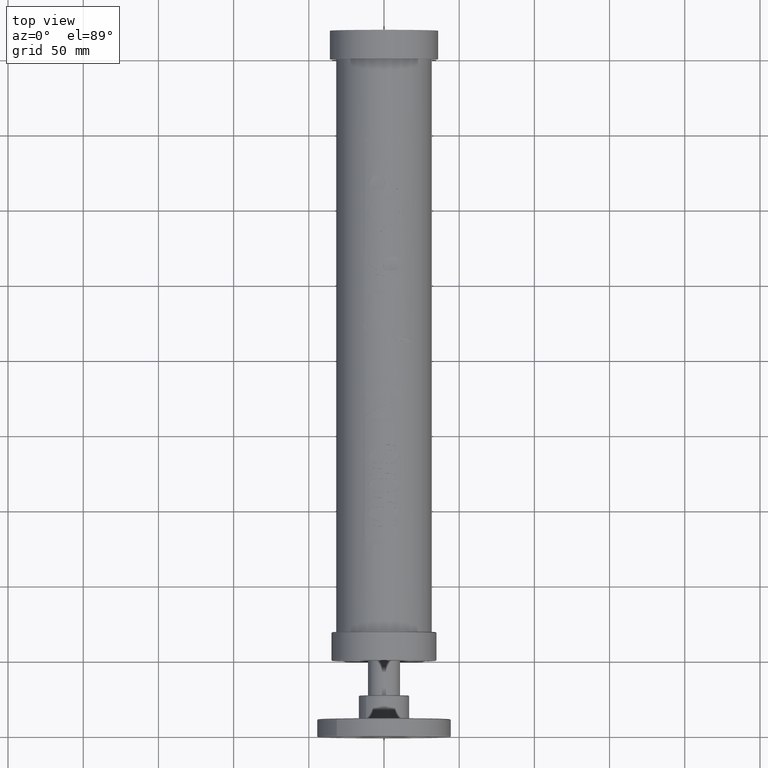
[diagram: clean part render]
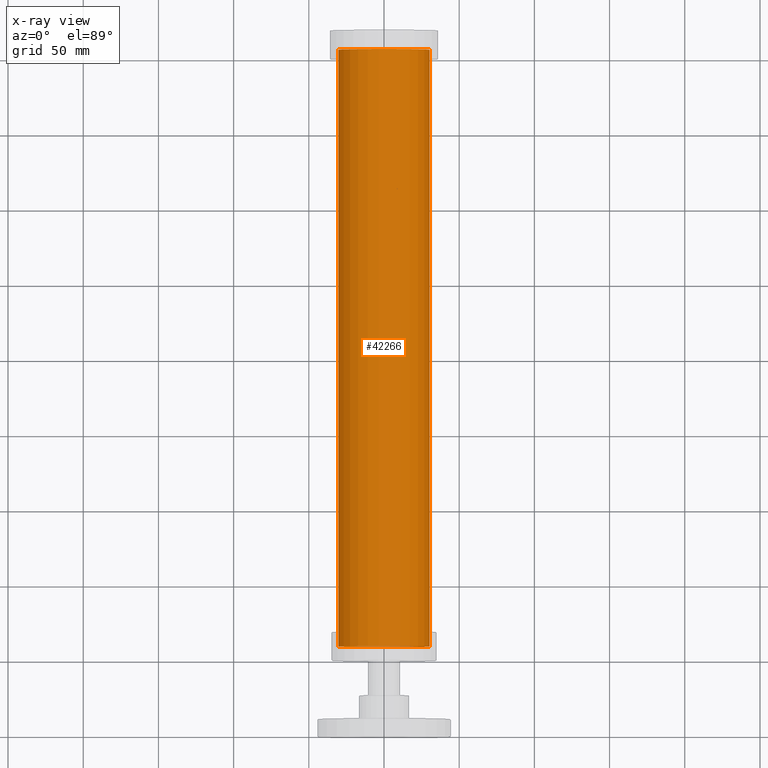
[diagram: x-ray — body ghosted, one internal face saturated and labeled with its STEP entity id]
A machine part, top view, then the same camera in x-ray: the body is ghosted and one INTERNAL B-rep face — a face not visible from any outside direction — is saturated and labeled: STEP entity #42266.
In plain terms, the highlighted cylindrical surface (bore or boss wall) has radius 30.226 mm, axis along (0, -1, 0).
Its self-contained STEP definition (entity closure, byte-faithful):
#90=CARTESIAN_POINT('',(-1.190000000000000,16.0,-5.466032E-015));
#91=VERTEX_POINT('',#90);
#92=CARTESIAN_POINT('',(-3.812650E-032,16.0,-5.611765E-015));
#93=DIRECTION('',(0.0,1.0,0.0));
#94=DIRECTION('',(1.0,0.0,0.0));
#95=AXIS2_PLACEMENT_3D('',#92,#93,#94);
#96=CIRCLE('',#95,1.190000000000000);
#97=EDGE_CURVE('',#91,#91,#96,.T.);
#42247=CARTESIAN_POINT('',(-3.812650E-032,8.250000000000004,-2.851108E-015));
#42248=DIRECTION('',(0.0,-1.0,3.562138E-016));
#42249=DIRECTION('',(1.0,0.0,0.0));
#42250=AXIS2_PLACEMENT_3D('',#42247,#42248,#42249);
#42251=CYLINDRICAL_SURFACE('',#42250,1.190000000000000);
#42252=ORIENTED_EDGE('',*,*,#97,.T.);
#42253=EDGE_LOOP('',(#42252));
#42254=FACE_OUTER_BOUND('',#42253,.T.);
#42255=CARTESIAN_POINT('',(1.190000000000000,0.375000000000003,-4.592425E-017));
#42256=VERTEX_POINT('',#42255);
#42257=CARTESIAN_POINT('',(-3.812650E-032,0.375000000000004,-4.592425E-017));
#42258=DIRECTION('',(0.0,1.0,0.0));
#42259=DIRECTION('',(1.0,0.0,0.0));
#42260=AXIS2_PLACEMENT_3D('',#42257,#42258,#42259);
#42261=CIRCLE('',#42260,1.190000000000000);
#42262=EDGE_CURVE('',#42256,#42256,#42261,.T.);
#42263=ORIENTED_EDGE('',*,*,#42262,.F.);
#42264=EDGE_LOOP('',(#42263));
#42265=FACE_BOUND('',#42264,.T.);
#42266=ADVANCED_FACE('',(#42254,#42265),#42251,.F.);